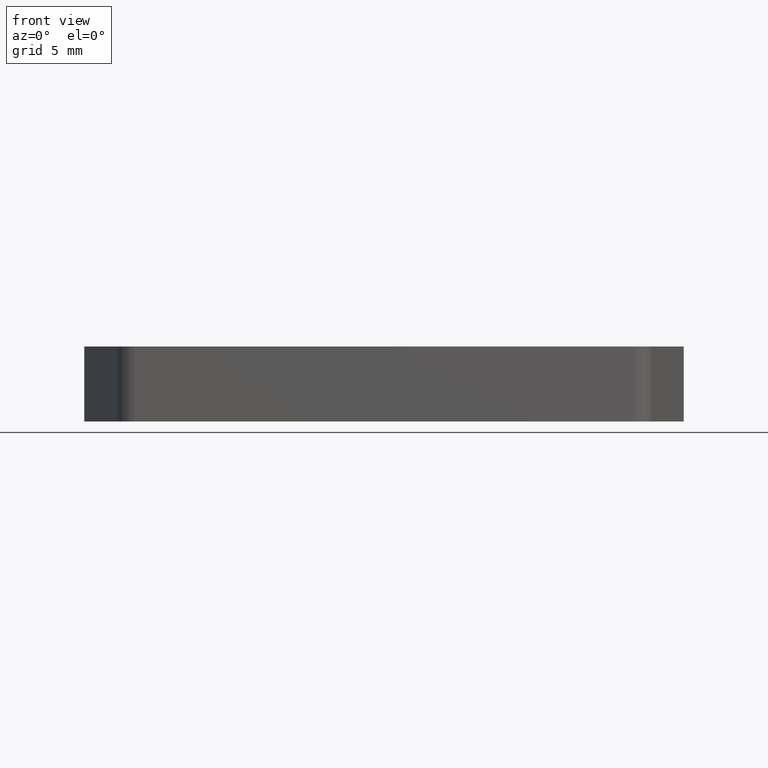
[diagram: clean part render]
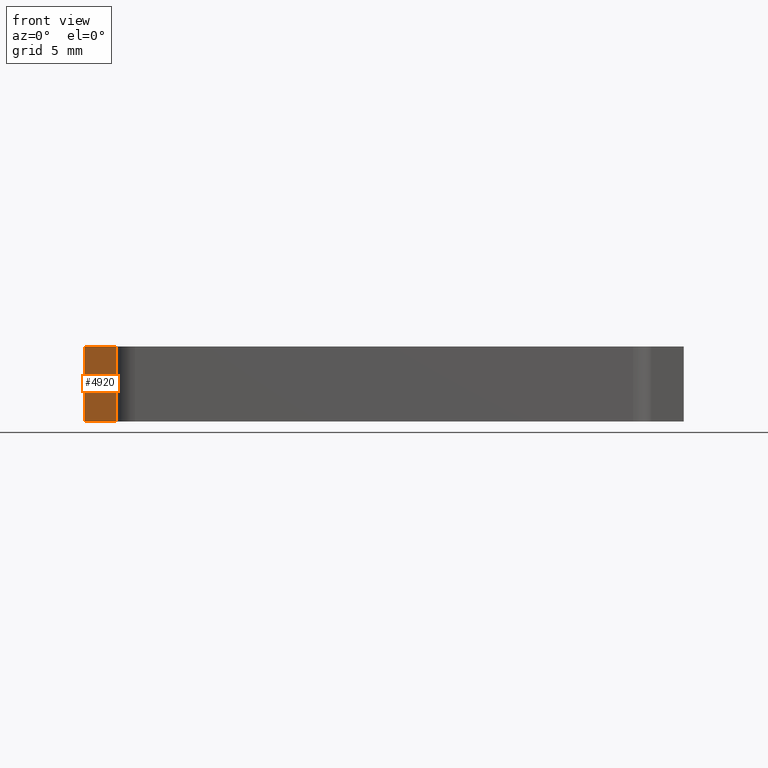
[diagram: same view with one face highlighted and labeled with its STEP entity id]
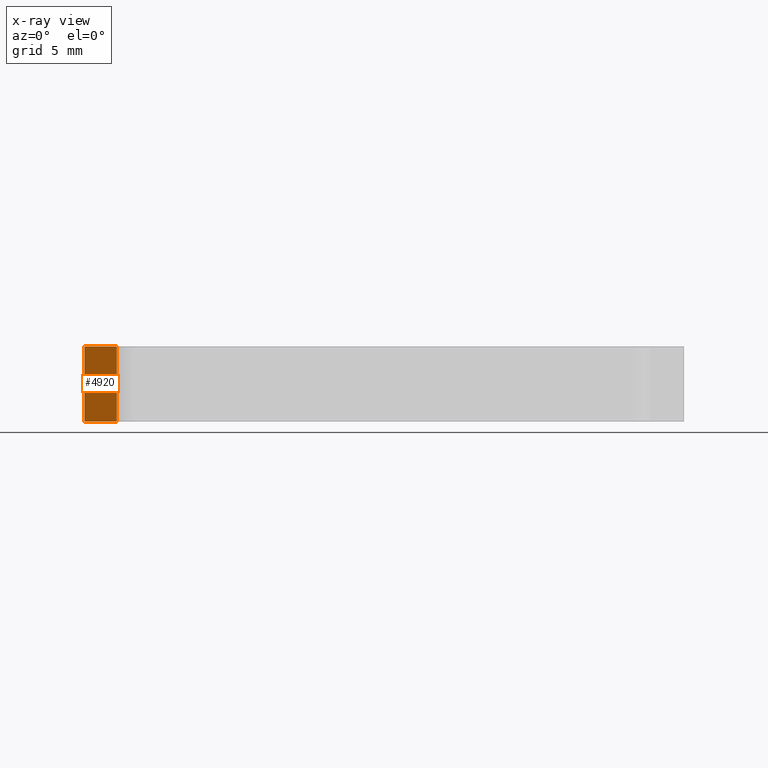
[diagram: x-ray of the same camera — body ghosted, the highlighted face saturated]
A machine part, front view. The second image highlights one B-rep face of the part: STEP entity #4920.
The next image is the same camera in x-ray: the body ghosted, the highlighted face saturated — about 0% of this face is hidden behind the body in this view.
In plain terms, the highlighted planar face has unit normal (-0.9744, -0.225, -0).
Its self-contained STEP definition (entity closure, byte-faithful):
#450=CARTESIAN_POINT('',(-67.3523277467496,8.31931566140767,0.));
#460=VERTEX_POINT('',#450);
#490=CARTESIAN_POINT('',(-65.6150559085246,0.794364607063827,0.));
#500=DIRECTION('',(-0.224951054343896,0.974370064785228,0.));
#510=VECTOR('',#500,1.);
#520=LINE('',#490,#510);
#530=CARTESIAN_POINT('',(-65.6150559085246,0.794364607063827,0.));
#540=VERTEX_POINT('',#530);
#550=EDGE_CURVE('',#540,#460,#520,.T.);
#1700=CARTESIAN_POINT('',(-65.6150559085246,0.794364607063827,4.));
#1710=VERTEX_POINT('',#1700);
#1740=CARTESIAN_POINT('',(-65.6150559085246,0.794364607063827,4.));
#1750=DIRECTION('',(-0.224951054343896,0.974370064785228,0.));
#1760=VECTOR('',#1750,1.);
#1770=LINE('',#1740,#1760);
#1780=CARTESIAN_POINT('',(-67.3523277467496,8.31931566140767,4.));
#1790=VERTEX_POINT('',#1780);
#1800=EDGE_CURVE('',#1710,#1790,#1770,.T.);
#4590=CARTESIAN_POINT('',(-67.3523277467496,8.31931566140767,0.));
#4600=DIRECTION('',(0.,0.,1.));
#4610=VECTOR('',#4600,1.);
#4620=LINE('',#4590,#4610);
#4630=EDGE_CURVE('',#460,#1790,#4620,.T.);
#4760=CARTESIAN_POINT('',(-65.6150559085246,0.794364607063827,0.));
#4770=DIRECTION('',(-0.974370064785228,-0.224951054343896,-0.));
#4780=DIRECTION('',(-0.224951054343896,0.974370064785228,0.));
#4790=AXIS2_PLACEMENT_3D('',#4760,#4770,#4780);
#4800=PLANE('',#4790);
#4810=ORIENTED_EDGE('',*,*,#4630,.F.);
#4820=ORIENTED_EDGE('',*,*,#1800,.T.);
#4830=CARTESIAN_POINT('',(-65.6150559085246,0.794364607063827,0.));
#4840=DIRECTION('',(0.,0.,1.));
#4850=VECTOR('',#4840,1.);
#4860=LINE('',#4830,#4850);
#4870=EDGE_CURVE('',#540,#1710,#4860,.T.);
#4880=ORIENTED_EDGE('',*,*,#4870,.T.);
#4890=ORIENTED_EDGE('',*,*,#550,.F.);
#4900=EDGE_LOOP('',(#4890,#4880,#4820,#4810));
#4910=FACE_OUTER_BOUND('',#4900,.T.);
#4920=ADVANCED_FACE('',(#4910),#4800,.T.);